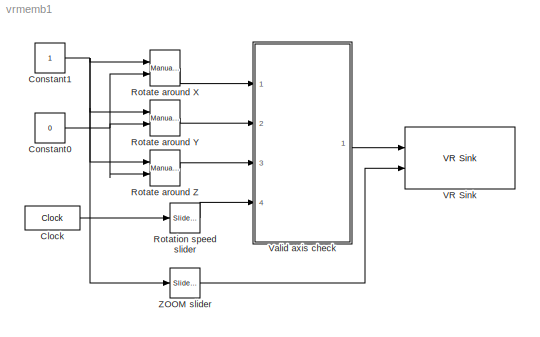
MODEL vrmemb1
KIND model
CONFIG PostLoadFcn = vrmemb1_callbacks PostLoad;
BLOCK [Clock] Clock
  Decimation = 1
  DisplayTime = on
BLOCK [Constant] Constant0
  Value = 0
BLOCK [Constant] Constant1
BLOCK [Reference] Rotate around X  REF=simulink/Signal\nRouting/Manual Switch
  Ports = [2, 1]
  ShowPortLabels = on
  SourceBlock = simulink/Signal\nRouting/Manual Switch
  SourceType = Manual Switch
  action = 0
  sw = 0
BLOCK [Reference] Rotate around Y  REF=simulink/Signal\nRouting/Manual Switch
  Ports = [2, 1]
  ShowPortLabels = on
  SourceBlock = simulink/Signal\nRouting/Manual Switch
  SourceType = Manual Switch
  action = 0
  sw = 0
BLOCK [Reference] Rotate around Z  REF=simulink/Signal\nRouting/Manual Switch
  Ports = [2, 1]
  ShowPortLabels = on
  SourceBlock = simulink/Signal\nRouting/Manual Switch
  SourceType = Manual Switch
  action = 0
  sw = 1
BLOCK [Reference] Rotation speed slider  REF=simulink/Math\nOperations/Slider\nGain
  Ports = [1, 1]
  ShowPortLabels = on
  SourceBlock = simulink/Math\nOperations/Slider\nGain
  SourceType = Slider Gain
  gain = 5.79
  high = 10
  low = 0
BLOCK [Reference] VR Sink  REF=vrlib/VR Sink
  AutoView = on
  FieldsWritten = Membrane.rotation.4.1.double#View1.fieldOfView.1.1.double
  Ports = [2]
  RemoteChange = off
  RemoteView = off
  SampleTime = 0.01
  SourceBlock = vrlib/VR Sink
  SourceType = Virtual Reality Sink
  ViewEnable = on
  WorldFileName = membrane.wrl
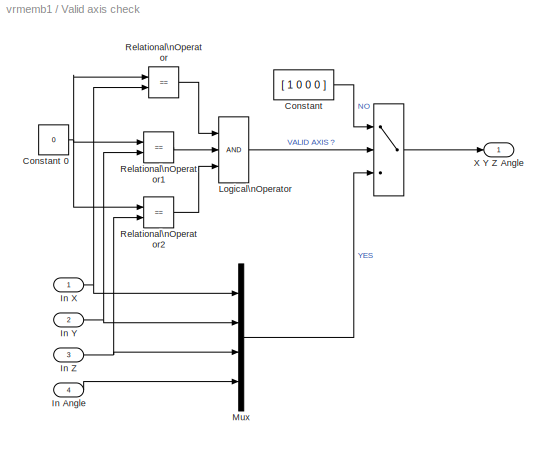
BLOCK [SubSystem] Valid axis check
  Description = This block is used for eliminating the [ 0 0 0 X ] combination of inputs, which would result in undefined rotation.
  EnableExecutionContextPropagation = on
  MinAlgLoopOccurrences = off
  Ports = [4, 1]
  TreatAsAtomicUnit = off
BLOCK [Switch] Valid axis check/ 
  SaturateOnIntegerOverflow = off
  Threshold = 0.5
BLOCK [Constant] Valid axis check/Constant
  Value = [ 1 0 0 0 ]
BLOCK [Constant] Valid axis check/Constant 0
  Value = 0
BLOCK [Inport] Valid axis check/In Angle
  IconDisplay = Port number
  LatchInput = off
  Port = 4
BLOCK [Inport] Valid axis check/In X
  IconDisplay = Port number
  LatchInput = off
BLOCK [Inport] Valid axis check/In Y
  IconDisplay = Port number
  LatchInput = off
  Port = 2
BLOCK [Inport] Valid axis check/In Z
  IconDisplay = Port number
  LatchInput = off
  Port = 3
BLOCK [Logic] Valid axis check/Logical\nOperator
  Inputs = 3
  Ports = [3, 1]
BLOCK [Mux] Valid axis check/Mux
  DisplayOption = bar
  Ports = [4, 1]
BLOCK [RelationalOperator] Valid axis check/Relational\nOperator
  Operator = ==
BLOCK [RelationalOperator] Valid axis check/Relational\nOperator1
  Operator = ==
BLOCK [RelationalOperator] Valid axis check/Relational\nOperator2
  Operator = ==
BLOCK [Outport] Valid axis check/X Y Z Angle
  IconDisplay = Port number
BLOCK [Reference] ZOOM slider  REF=simulink/Math\nOperations/Slider\nGain
  Description = Use this slider to ZOOM the scene - controls the fieldOfView parameter of View1
  Ports = [1, 1]
  ShowPortLabels = on
  SourceBlock = simulink/Math\nOperations/Slider\nGain
  SourceType = Slider Gain
  UserData = DataTag0
  UserDataPersistent = on
  gain = 0.25
  high = 0.8
  low = 0.25
LINE Clock:1 -> Rotation speed slider:1
NET Constant0:1 -> Rotate around X:2, Rotate around Y:2, Rotate around Z:2
NET Constant1:1 -> Rotate around X:1, Rotate around Y:1, Rotate around Z:1, ZOOM slider:1
LINE Rotate around X:1 -> Valid axis check:1
LINE Rotate around Y:1 -> Valid axis check:2
LINE Rotate around Z:1 -> Valid axis check:3
LINE Rotation speed slider:1 -> Valid axis check:4
LINE Valid axis check/ :1 -> Valid axis check/X Y Z Angle:1
NET Valid axis check/Constant 0:1 -> Valid axis check/Relational\nOperator1:1, Valid axis check/Relational\nOperator2:1, Valid axis check/Relational\nOperator:1
LINE Valid axis check/Constant:1 -> Valid axis check/ :1
LINE Valid axis check/In Angle:1 -> Valid axis check/Mux:4
NET Valid axis check/In X:1 -> Valid axis check/Mux:1, Valid axis check/Relational\nOperator:2
NET Valid axis check/In Y:1 -> Valid axis check/Mux:2, Valid axis check/Relational\nOperator1:2
NET Valid axis check/In Z:1 -> Valid axis check/Mux:3, Valid axis check/Relational\nOperator2:2
LINE Valid axis check/Logical\nOperator:1 -> Valid axis check/ :2
LINE Valid axis check/Mux:1 -> Valid axis check/ :3
LINE Valid axis check/Relational\nOperator1:1 -> Valid axis check/Logical\nOperator:2
LINE Valid axis check/Relational\nOperator2:1 -> Valid axis check/Logical\nOperator:3
LINE Valid axis check/Relational\nOperator:1 -> Valid axis check/Logical\nOperator:1
LINE Valid axis check:1 -> VR Sink:1
LINE ZOOM slider:1 -> VR Sink:2
note: NET lines group one-source signal fan-out (src -> all destinations, sorted); 1:1 wires keep LINE
